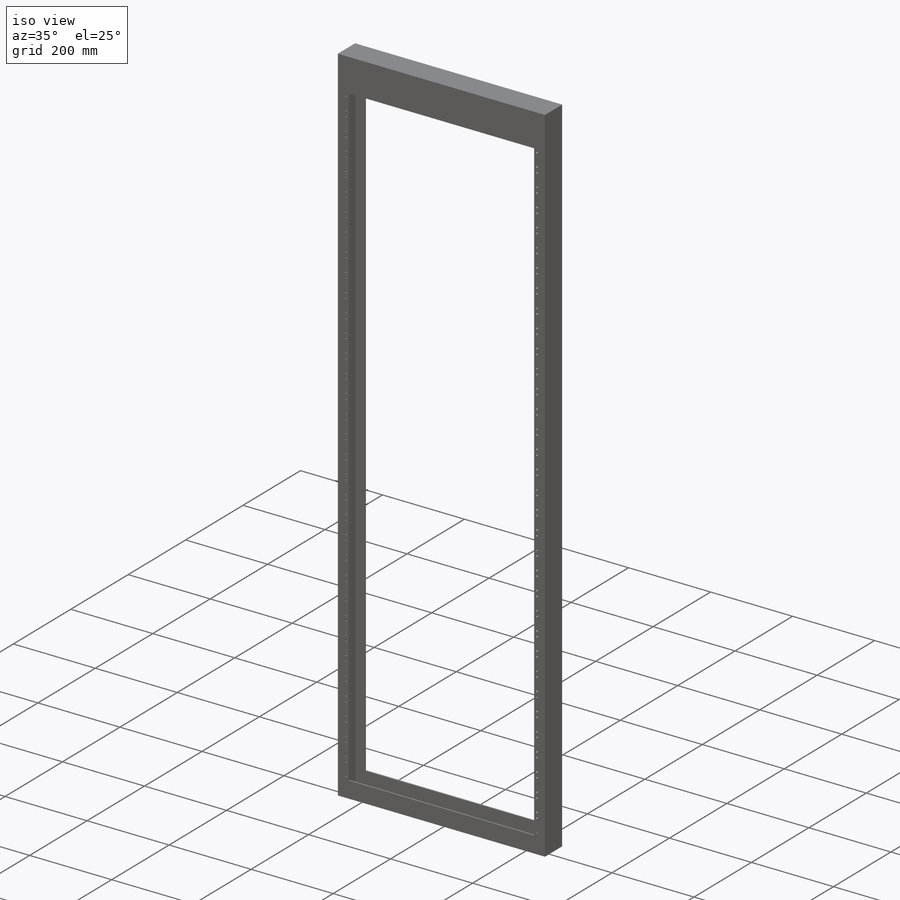
[diagram: iso view]
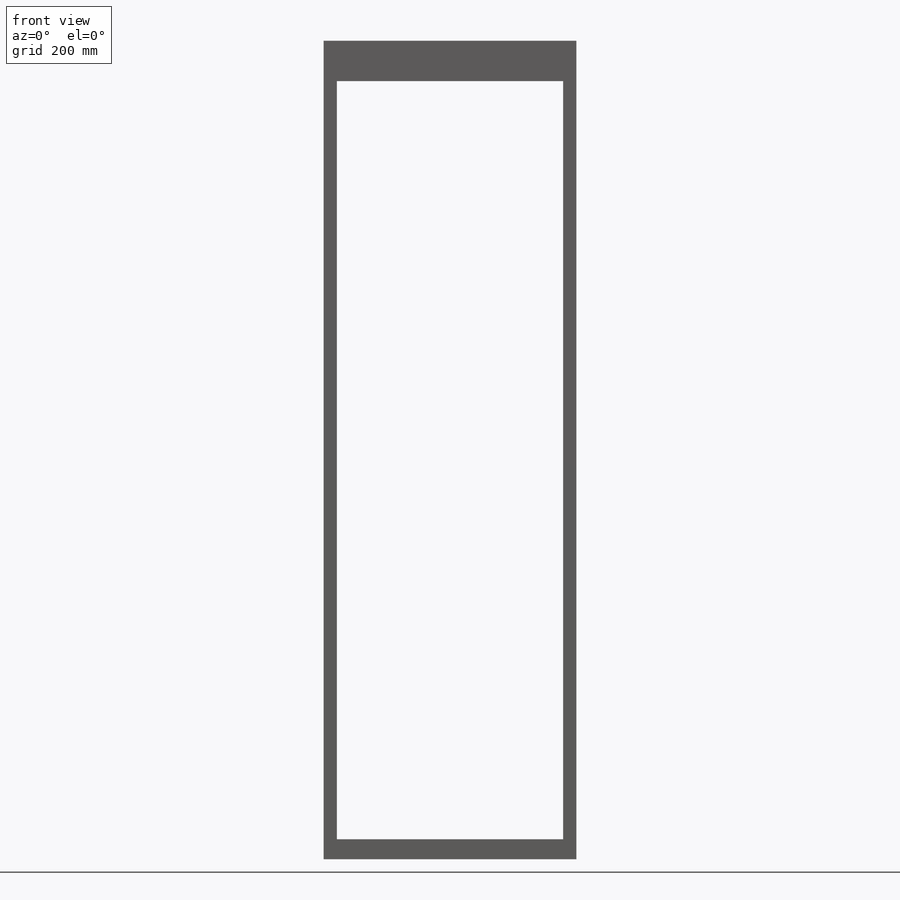
[diagram: front view]
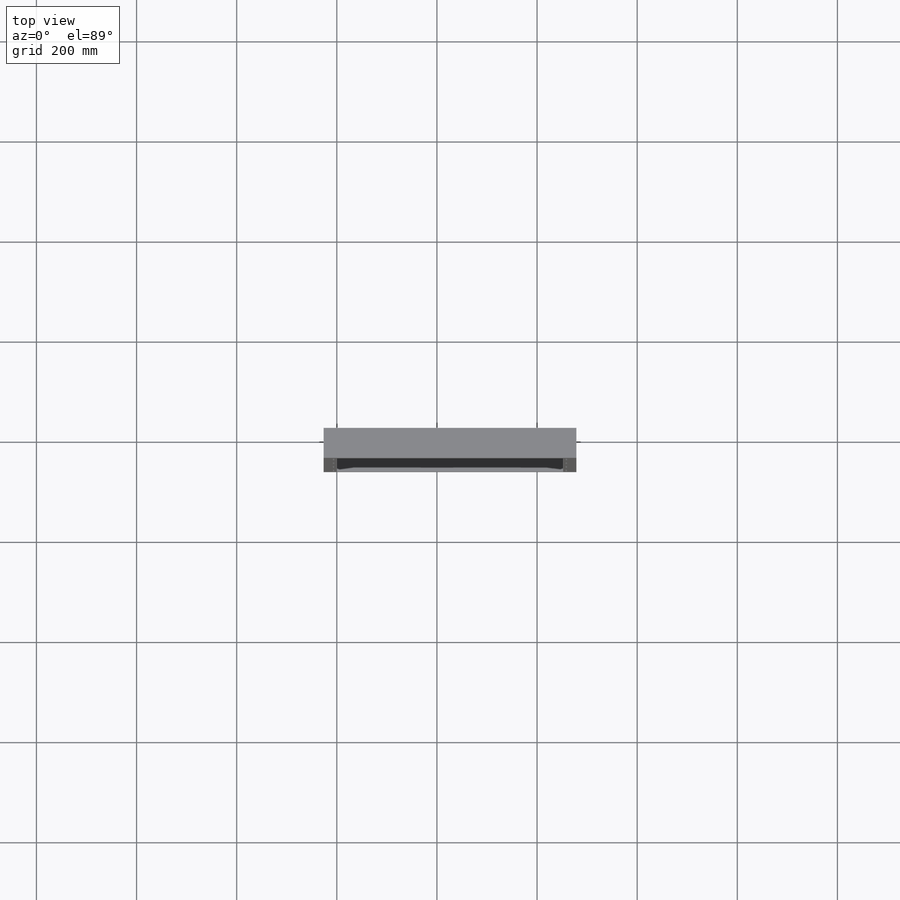
[diagram: top view]
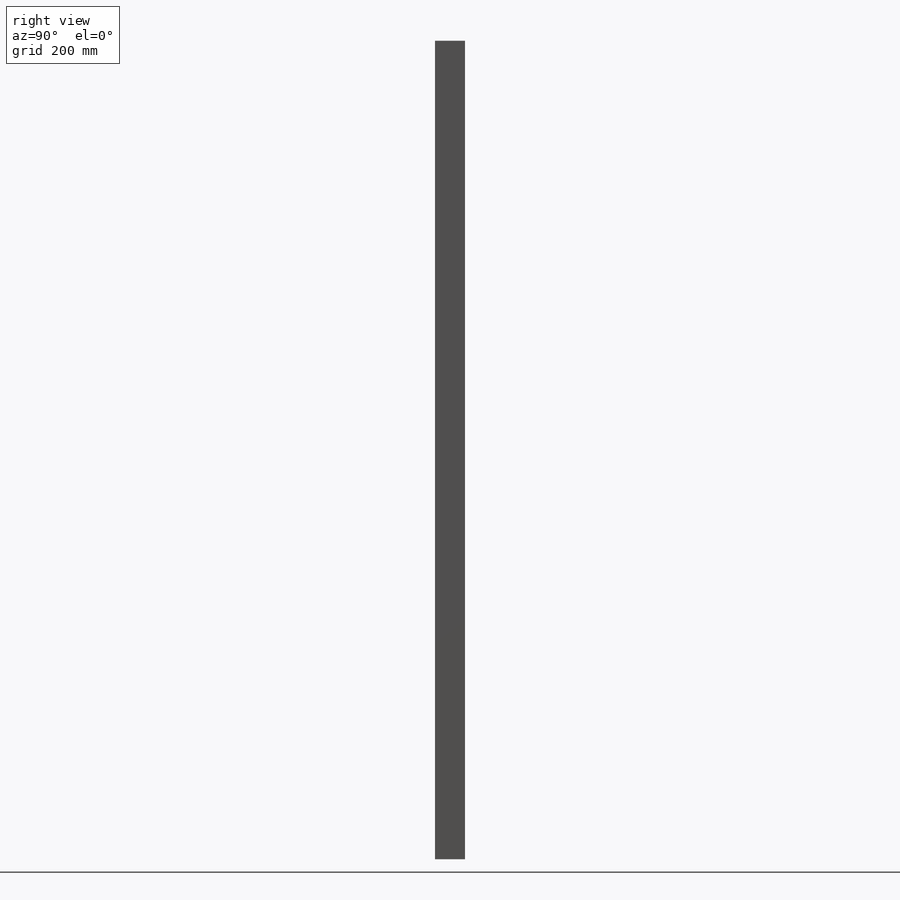
[diagram: right view]
SOLIDWORKS PART (.sldprt)
format: sldprt  version: not decoded by parser v0  size: 414,208 bytes
history: native  units: mm
features: sketch x5, material x1, extrude x1, shell x1, hole x1 (+13 scaffold rows collapsed)
feature tree (22):
  scaffold x13  (default folders/planes/origin — collapsed)
  material  "Material <not specified>"
  sketch  "Sketch1"  dims[c1.D2=452.0mm c1.D3=1634.9mm c1.D4=505.0mm c1.D1=1581.9mm c2.D1=1514.4mm c2.D5=80.5mm c2.D6=26.5mm c3.D1=50.8mm]
  extrude  "Boss-Extrude1"  Depth=60mm
  shell  "Shell1"  Thickness=3.175mm
  hole  "Tap Drill for M5x0.8 Tap1"  Diameter=4.2mm Depth=19.05mm
  sketch  "Sketch4"  dims[c1.D1=7.9375mm c1.D2=66.675mm c2.D1=232.5mm c2.D2=7.9mm c2.D3=31.75mm c2.D5=31.75mm c2.D4=34.0]
  sketch  "Sketch2"  dims[hole-wizard template sketch: 47 standard entries collapsed; hole parameters kept: c15.Hole Depth=19.05mm c15.D3=~14.816244mm c15.Drill Angle=118.0deg]
  sketch  "Sketch5"  dims[D1=10.16mm]
  sketch  "Sketch6"  dims[Thru Hole Dia.=6.35mm Thru Hole Depth=88.575mm]
decode coverage: 8 of 8 modeling features carry decoded parameters
note: ~ marks probable driven/reference dimensions
note: suppression state not decoded; provenance and decode notes live in map.json
